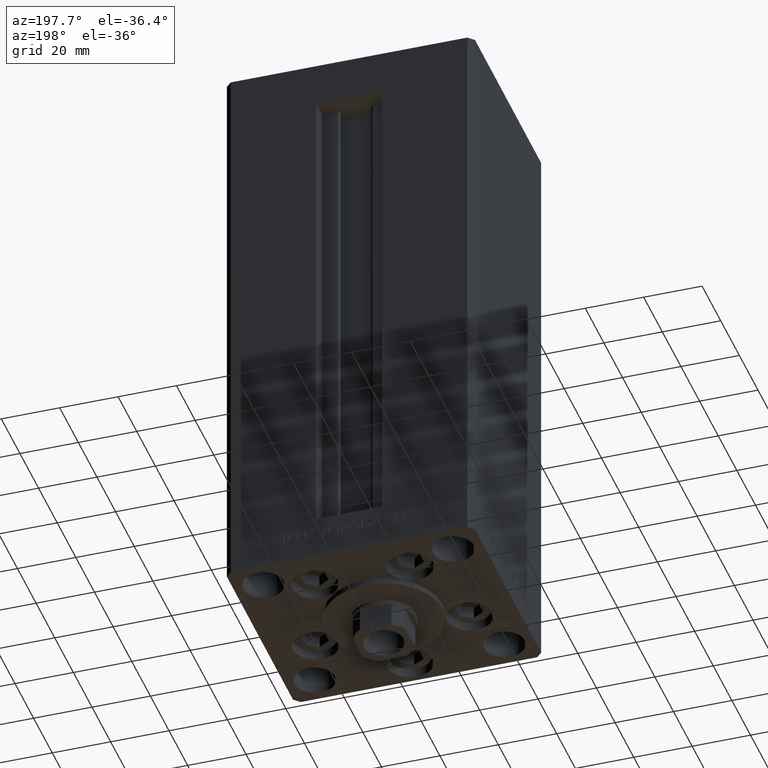
[diagram: clean part render]
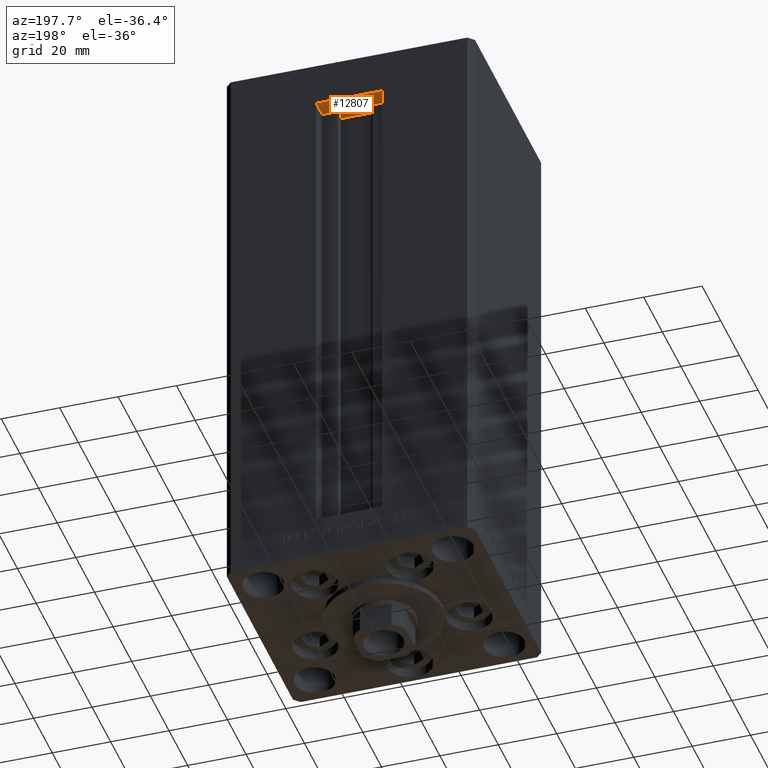
[diagram: same view with one face highlighted and labeled with its STEP entity id]
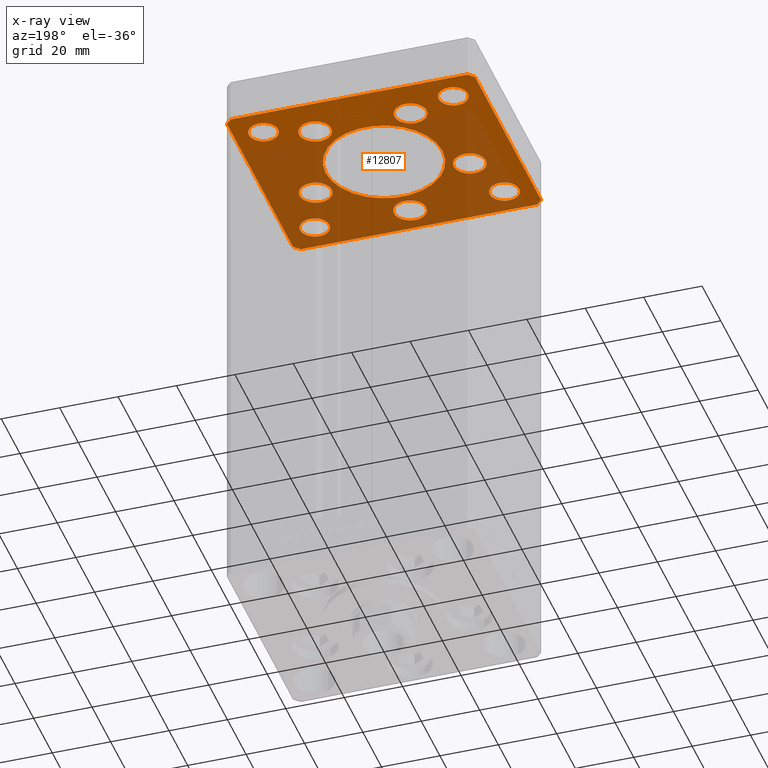
[diagram: x-ray of the same camera — body ghosted, the highlighted face saturated]
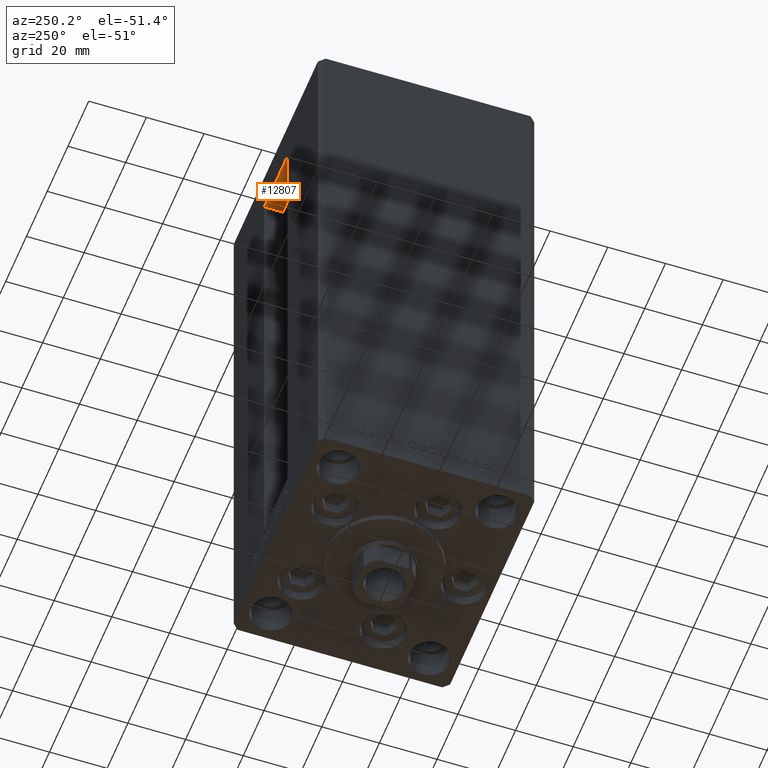
[diagram: same view with one face highlighted and labeled with its STEP entity id]
A machine part, auxiliary view. The second image highlights one B-rep face of the part: STEP entity #12807.
The next image is the same camera in x-ray: the body ghosted, the highlighted face saturated — about 64% of this face is hidden behind the body in this view.
A second angle (auxiliary view) of the same face is appended — the face is thin or edge-on in the first view.
In plain terms, the highlighted planar face has unit normal (0, 0, 1).
Its self-contained STEP definition (entity closure, byte-faithful):
#374 = ORIENTED_EDGE ( 'NONE', *, *, #46108, .T. ) ;
#472 = VERTEX_POINT ( 'NONE', #10645 ) ;
#768 = LINE ( 'NONE', #12902, #25895 ) ;
#923 = ORIENTED_EDGE ( 'NONE', *, *, #30045, .T. ) ;
#929 = CARTESIAN_POINT ( 'NONE',  ( 40.49999999999991473, 37.50000000000000711, -15.00000000000000000 ) ) ;
#1007 = VERTEX_POINT ( 'NONE', #45325 ) ;
#1208 = ORIENTED_EDGE ( 'NONE', *, *, #11529, .T. ) ;
#1237 = DIRECTION ( 'NONE',  ( 1.000000000000000000, 0.000000000000000000, 0.000000000000000000 ) ) ;
#1264 = EDGE_LOOP ( 'NONE', ( #39795, #923 ) ) ;
#1366 = EDGE_CURVE ( 'NONE', #2457, #16910, #15929, .T. ) ;
#1390 = DIRECTION ( 'NONE',  ( 1.000000000000000000, 0.000000000000000000, 0.000000000000000000 ) ) ;
#1812 = VERTEX_POINT ( 'NONE', #42500 ) ;
#2179 = AXIS2_PLACEMENT_3D ( 'NONE', #5905, #12590, #39066 ) ;
#2247 = CARTESIAN_POINT ( 'NONE',  ( 32.50000000000000000, 27.49999999999999645, -15.00000000000000000 ) ) ;
#2457 = VERTEX_POINT ( 'NONE', #39800 ) ;
#2488 = EDGE_CURVE ( 'NONE', #3518, #28970, #36571, .T. ) ;
#2561 = DIRECTION ( 'NONE',  ( 1.000000000000000000, 0.000000000000000000, 0.000000000000000000 ) ) ;
#2667 = DIRECTION ( 'NONE',  ( 0.7071067811865474617, 0.7071067811865474617, 0.000000000000000000 ) ) ;
#2744 = VERTEX_POINT ( 'NONE', #29098 ) ;
#2889 = AXIS2_PLACEMENT_3D ( 'NONE', #26035, #11169, #26262 ) ;
#3304 = LINE ( 'NONE', #29541, #30504 ) ;
#3518 = VERTEX_POINT ( 'NONE', #39870 ) ;
#3549 = EDGE_CURVE ( 'NONE', #1812, #36129, #25378, .T. ) ;
#3650 = CARTESIAN_POINT ( 'NONE',  ( -40.50000000000000711, 37.49999999999997868, -15.00000000000000000 ) ) ;
#3892 = ORIENTED_EDGE ( 'NONE', *, *, #13446, .F. ) ;
#4025 = AXIS2_PLACEMENT_3D ( 'NONE', #2247, #43826, #17356 ) ;
#4085 = DIRECTION ( 'NONE',  ( 0.7071067811865463515, -0.7071067811865487940, 0.000000000000000000 ) ) ;
#4173 = DIRECTION ( 'NONE',  ( 0.000000000000000000, -0.000000000000000000, -1.000000000000000000 ) ) ;
#4447 = FACE_OUTER_BOUND ( 'NONE', #11737, .T. ) ;
#4823 = LINE ( 'NONE', #31301, #41502 ) ;
#5193 = CARTESIAN_POINT ( 'NONE',  ( -32.50000000000000000, -27.49999999999999645, -15.00000000000000000 ) ) ;
#5330 = ORIENTED_EDGE ( 'NONE', *, *, #48752, .F. ) ;
#5555 = CARTESIAN_POINT ( 'NONE',  ( -32.50000000000000000, 27.50000000000000355, -15.00000000000000000 ) ) ;
#5905 = CARTESIAN_POINT ( 'NONE',  ( 3.429011037612589276E-15, -28.00000000000000000, -15.00000000000000000 ) ) ;
#6147 = CARTESIAN_POINT ( 'NONE',  ( 40.50000000000000000, -37.50000000000000711, -15.00000000000000000 ) ) ;
#6386 = DIRECTION ( 'NONE',  ( 1.000000000000000000, 0.000000000000000000, 0.000000000000000000 ) ) ;
#6528 = ORIENTED_EDGE ( 'NONE', *, *, #37465, .F. ) ;
#6620 = ORIENTED_EDGE ( 'NONE', *, *, #19940, .F. ) ;
#6718 = EDGE_LOOP ( 'NONE', ( #6620, #6528 ) ) ;
#7186 = DIRECTION ( 'NONE',  ( -1.000000000000000000, 0.000000000000000000, 0.000000000000000000 ) ) ;
#7817 = CARTESIAN_POINT ( 'NONE',  ( 42.49999999999992895, 35.50000000000000000, -15.00000000000000000 ) ) ;
#7899 = EDGE_CURVE ( 'NONE', #32725, #13802, #11292, .T. ) ;
#8099 = AXIS2_PLACEMENT_3D ( 'NONE', #36132, #35146, #1237 ) ;
#8138 = DIRECTION ( 'NONE',  ( -0.000000000000000000, 0.000000000000000000, 1.000000000000000000 ) ) ;
#8310 = AXIS2_PLACEMENT_3D ( 'NONE', #32182, #13133, #27735 ) ;
#8640 = DIRECTION ( 'NONE',  ( 0.000000000000000000, -0.000000000000000000, -1.000000000000000000 ) ) ;
#8994 = DIRECTION ( 'NONE',  ( 0.000000000000000000, 0.000000000000000000, 1.000000000000000000 ) ) ;
#9035 = AXIS2_PLACEMENT_3D ( 'NONE', #22423, #17520, #47700 ) ;
#10238 = CARTESIAN_POINT ( 'NONE',  ( -27.50000000000000000, 27.50000000000000355, -15.00000000000000000 ) ) ;
#10322 = ORIENTED_EDGE ( 'NONE', *, *, #35474, .F. ) ;
#10333 = ORIENTED_EDGE ( 'NONE', *, *, #32221, .F. ) ;
#10645 = CARTESIAN_POINT ( 'NONE',  ( -42.50000000000000000, -35.50000000000000711, -15.00000000000000000 ) ) ;
#11096 = VERTEX_POINT ( 'NONE', #14770 ) ;
#11169 = DIRECTION ( 'NONE',  ( 0.000000000000000000, -0.000000000000000000, -1.000000000000000000 ) ) ;
#11279 = EDGE_CURVE ( 'NONE', #16718, #26800, #11530, .T. ) ;
#11292 = CIRCLE ( 'NONE', #27087, 5.500000000000000000 ) ;
#11381 = FACE_BOUND ( 'NONE', #48390, .T. ) ;
#11529 = EDGE_CURVE ( 'NONE', #16784, #16659, #46979, .T. ) ;
#11530 = LINE ( 'NONE', #7817, #13003 ) ;
#11737 = EDGE_LOOP ( 'NONE', ( #47469, #10322, #14054, #15085, #28581, #3892, #44416, #34085 ) ) ;
#11896 = CARTESIAN_POINT ( 'NONE',  ( 21.82291334290542650, 22.75000000000000000, -15.00000000000000000 ) ) ;
#12103 = DIRECTION ( 'NONE',  ( -0.000000000000000000, -0.000000000000000000, -1.000000000000000000 ) ) ;
#12108 = DIRECTION ( 'NONE',  ( 1.000000000000000000, 0.000000000000000000, 0.000000000000000000 ) ) ;
#12363 = AXIS2_PLACEMENT_3D ( 'NONE', #19364, #23071, #29548 ) ;
#12590 = DIRECTION ( 'NONE',  ( 0.000000000000000000, -0.000000000000000000, -1.000000000000000000 ) ) ;
#12616 = VERTEX_POINT ( 'NONE', #35440 ) ;
#12805 = ORIENTED_EDGE ( 'NONE', *, *, #18080, .F. ) ;
#12807 = ADVANCED_FACE ( 'NONE', ( #30909, #33906, #15094, #26720, #15332, #30191, #45274, #11381, #4447, #46010, #41816 ), #26478, .F. ) ;
#12902 = CARTESIAN_POINT ( 'NONE',  ( -40.49999999999999289, -37.50000000000002132, -15.00000000000000000 ) ) ;
#13003 = VECTOR ( 'NONE', #23148, 1000.000000000000114 ) ;
#13032 = VERTEX_POINT ( 'NONE', #17554 ) ;
#13133 = DIRECTION ( 'NONE',  ( 0.000000000000000000, -0.000000000000000000, -1.000000000000000000 ) ) ;
#13183 = CIRCLE ( 'NONE', #12363, 5.500000000000000000 ) ;
#13404 = EDGE_CURVE ( 'NONE', #472, #42751, #41460, .T. ) ;
#13446 = EDGE_CURVE ( 'NONE', #28970, #16718, #4823, .T. ) ;
#13556 = ORIENTED_EDGE ( 'NONE', *, *, #37689, .F. ) ;
#13657 = CARTESIAN_POINT ( 'NONE',  ( 42.50000000000000711, -35.50000000000000000, -15.00000000000000000 ) ) ;
#13767 = ORIENTED_EDGE ( 'NONE', *, *, #34899, .F. ) ;
#13802 = VERTEX_POINT ( 'NONE', #34948 ) ;
#14054 = ORIENTED_EDGE ( 'NONE', *, *, #45545, .F. ) ;
#14770 = CARTESIAN_POINT ( 'NONE',  ( 20.89865316429777309, -9.333333333333330373, -15.00000000000000000 ) ) ;
#15085 = ORIENTED_EDGE ( 'NONE', *, *, #41429, .F. ) ;
#15094 = FACE_BOUND ( 'NONE', #47668, .T. ) ;
#15201 = CARTESIAN_POINT ( 'NONE',  ( 20.00000000000000000, 0.000000000000000000, -15.00000000000000000 ) ) ;
#15332 = FACE_BOUND ( 'NONE', #45406, .T. ) ;
#15929 = CIRCLE ( 'NONE', #18209, 4.999999999999997335 ) ;
#16144 = CIRCLE ( 'NONE', #9035, 5.500000000000000000 ) ;
#16181 = AXIS2_PLACEMENT_3D ( 'NONE', #41305, #4173, #25983 ) ;
#16310 = CARTESIAN_POINT ( 'NONE',  ( -10.82291334290543183, 22.74999999999999645, -15.00000000000000000 ) ) ;
#16659 = VERTEX_POINT ( 'NONE', #10238 ) ;
#16718 = VERTEX_POINT ( 'NONE', #37671 ) ;
#16784 = VERTEX_POINT ( 'NONE', #26528 ) ;
#16910 = VERTEX_POINT ( 'NONE', #23047 ) ;
#16942 = DIRECTION ( 'NONE',  ( 0.000000000000000000, 0.000000000000000000, 1.000000000000000000 ) ) ;
#17017 = CARTESIAN_POINT ( 'NONE',  ( -40.50000000000000711, 37.49999999999997868, -15.00000000000000000 ) ) ;
#17120 = ORIENTED_EDGE ( 'NONE', *, *, #21578, .F. ) ;
#17356 = DIRECTION ( 'NONE',  ( 1.000000000000000000, 0.000000000000000000, 0.000000000000000000 ) ) ;
#17520 = DIRECTION ( 'NONE',  ( 0.000000000000000000, -0.000000000000000000, -1.000000000000000000 ) ) ;
#17554 = CARTESIAN_POINT ( 'NONE',  ( -42.50000000000000711, 35.49999999999997158, -15.00000000000000000 ) ) ;
#17717 = CIRCLE ( 'NONE', #31116, 5.499999999999998224 ) ;
#17759 = EDGE_CURVE ( 'NONE', #26413, #40225, #38348, .T. ) ;
#17879 = CIRCLE ( 'NONE', #32109, 5.000000000000004441 ) ;
#18080 = EDGE_CURVE ( 'NONE', #18358, #28953, #17879, .T. ) ;
#18209 = AXIS2_PLACEMENT_3D ( 'NONE', #19286, #12103, #7186 ) ;
#18358 = VERTEX_POINT ( 'NONE', #46844 ) ;
#18571 = VERTEX_POINT ( 'NONE', #11896 ) ;
#19107 = DIRECTION ( 'NONE',  ( -1.000000000000000000, -3.426614273534436165E-16, 0.000000000000000000 ) ) ;
#19237 = AXIS2_PLACEMENT_3D ( 'NONE', #39939, #40422, #29285 ) ;
#19256 = VERTEX_POINT ( 'NONE', #46858 ) ;
#19286 = CARTESIAN_POINT ( 'NONE',  ( 32.50000000000000000, -27.49999999999999645, -15.00000000000000000 ) ) ;
#19334 = DIRECTION ( 'NONE',  ( 1.000000000000000000, 1.713307136767217096E-16, 0.000000000000000000 ) ) ;
#19345 = AXIS2_PLACEMENT_3D ( 'NONE', #42050, #8138, #12108 ) ;
#19364 = CARTESIAN_POINT ( 'NONE',  ( -16.32291334290543006, 22.74999999999999645, -15.00000000000000000 ) ) ;
#19452 = DIRECTION ( 'NONE',  ( 1.000000000000000000, 0.000000000000000000, 0.000000000000000000 ) ) ;
#19940 = EDGE_CURVE ( 'NONE', #2744, #11096, #44753, .T. ) ;
#20032 = CARTESIAN_POINT ( 'NONE',  ( 16.32291334290542295, 22.75000000000000000, -15.00000000000000000 ) ) ;
#20327 = EDGE_LOOP ( 'NONE', ( #43040, #42219 ) ) ;
#20521 = CARTESIAN_POINT ( 'NONE',  ( -42.50000000000000711, 35.49999999999997158, -15.00000000000000000 ) ) ;
#21033 = CIRCLE ( 'NONE', #47086, 5.500000000000001776 ) ;
#21377 = DIRECTION ( 'NONE',  ( 0.000000000000000000, -0.000000000000000000, -1.000000000000000000 ) ) ;
#21497 = LINE ( 'NONE', #3650, #33801 ) ;
#21578 = EDGE_CURVE ( 'NONE', #42259, #12616, #32217, .T. ) ;
#21594 = CIRCLE ( 'NONE', #8099, 4.999999999999997335 ) ;
#22423 = CARTESIAN_POINT ( 'NONE',  ( 3.429011037612589276E-15, -28.00000000000000000, -15.00000000000000000 ) ) ;
#22889 = CARTESIAN_POINT ( 'NONE',  ( -42.50000000000000000, -35.50000000000000711, -15.00000000000000000 ) ) ;
#23047 = CARTESIAN_POINT ( 'NONE',  ( 27.50000000000000355, -27.49999999999999645, -15.00000000000000000 ) ) ;
#23071 = DIRECTION ( 'NONE',  ( 0.000000000000000000, -0.000000000000000000, -1.000000000000000000 ) ) ;
#23148 = DIRECTION ( 'NONE',  ( -0.7071067811865474617, 0.7071067811865474617, 0.000000000000000000 ) ) ;
#23743 = DIRECTION ( 'NONE',  ( 1.000000000000000000, 0.000000000000000000, 0.000000000000000000 ) ) ;
#23906 = ORIENTED_EDGE ( 'NONE', *, *, #17759, .F. ) ;
#24494 = CARTESIAN_POINT ( 'NONE',  ( -16.32291334290543006, 22.74999999999999645, -15.00000000000000000 ) ) ;
#25378 = CIRCLE ( 'NONE', #4025, 4.999999999999997335 ) ;
#25651 = AXIS2_PLACEMENT_3D ( 'NONE', #43892, #8994, #2561 ) ;
#25708 = CARTESIAN_POINT ( 'NONE',  ( -5.499999999999996447, -28.00000000000000000, -15.00000000000000000 ) ) ;
#25895 = VECTOR ( 'NONE', #19334, 1000.000000000000000 ) ;
#25983 = DIRECTION ( 'NONE',  ( 1.000000000000000000, 0.000000000000000000, 0.000000000000000000 ) ) ;
#26035 = CARTESIAN_POINT ( 'NONE',  ( 26.39865316429776954, -9.333333333333330373, -15.00000000000000000 ) ) ;
#26207 = DIRECTION ( 'NONE',  ( -1.000000000000000000, 0.000000000000000000, 0.000000000000000000 ) ) ;
#26262 = DIRECTION ( 'NONE',  ( 1.000000000000000000, 0.000000000000000000, 0.000000000000000000 ) ) ;
#26413 = VERTEX_POINT ( 'NONE', #42382 ) ;
#26478 = PLANE ( 'NONE',  #19345 ) ;
#26513 = CARTESIAN_POINT ( 'NONE',  ( -26.39865316429776954, -9.333333333333337478, -15.00000000000000000 ) ) ;
#26528 = CARTESIAN_POINT ( 'NONE',  ( -37.50000000000000711, 27.50000000000000355, -15.00000000000000000 ) ) ;
#26720 = FACE_BOUND ( 'NONE', #6718, .T. ) ;
#26800 = VERTEX_POINT ( 'NONE', #929 ) ;
#27087 = AXIS2_PLACEMENT_3D ( 'NONE', #24494, #27218, #42308 ) ;
#27218 = DIRECTION ( 'NONE',  ( 0.000000000000000000, -0.000000000000000000, -1.000000000000000000 ) ) ;
#27735 = DIRECTION ( 'NONE',  ( 1.000000000000000000, 0.000000000000000000, 0.000000000000000000 ) ) ;
#28188 = DIRECTION ( 'NONE',  ( 9.773090005503140331E-17, -1.000000000000000000, 0.000000000000000000 ) ) ;
#28335 = DIRECTION ( 'NONE',  ( -1.172770800660376741E-15, 1.000000000000000000, 0.000000000000000000 ) ) ;
#28524 = VECTOR ( 'NONE', #2667, 1000.000000000000114 ) ;
#28581 = ORIENTED_EDGE ( 'NONE', *, *, #11279, .F. ) ;
#28669 = CARTESIAN_POINT ( 'NONE',  ( 0.000000000000000000, 0.000000000000000000, -15.00000000000000000 ) ) ;
#28774 = VECTOR ( 'NONE', #28188, 1000.000000000000000 ) ;
#28953 = VERTEX_POINT ( 'NONE', #37813 ) ;
#28970 = VERTEX_POINT ( 'NONE', #13657 ) ;
#29098 = CARTESIAN_POINT ( 'NONE',  ( 31.89865316429776954, -9.333333333333330373, -15.00000000000000000 ) ) ;
#29120 = VERTEX_POINT ( 'NONE', #17017 ) ;
#29285 = DIRECTION ( 'NONE',  ( -1.000000000000000000, 0.000000000000000000, 0.000000000000000000 ) ) ;
#29541 = CARTESIAN_POINT ( 'NONE',  ( 40.49999999999991473, 37.50000000000000711, -15.00000000000000000 ) ) ;
#29548 = DIRECTION ( 'NONE',  ( 1.000000000000000000, 0.000000000000000000, 0.000000000000000000 ) ) ;
#29580 = AXIS2_PLACEMENT_3D ( 'NONE', #43893, #21377, #1390 ) ;
#30045 = EDGE_CURVE ( 'NONE', #36129, #1812, #21594, .T. ) ;
#30191 = FACE_BOUND ( 'NONE', #20327, .T. ) ;
#30504 = VECTOR ( 'NONE', #19107, 1000.000000000000000 ) ;
#30909 = FACE_BOUND ( 'NONE', #33508, .T. ) ;
#31116 = AXIS2_PLACEMENT_3D ( 'NONE', #26513, #48308, #33701 ) ;
#31301 = CARTESIAN_POINT ( 'NONE',  ( 42.50000000000000711, -35.50000000000000000, -15.00000000000000000 ) ) ;
#31548 = EDGE_LOOP ( 'NONE', ( #12805, #5330 ) ) ;
#32109 = AXIS2_PLACEMENT_3D ( 'NONE', #45019, #33875, #26207 ) ;
#32182 = CARTESIAN_POINT ( 'NONE',  ( 0.000000000000000000, 0.000000000000000000, -15.00000000000000000 ) ) ;
#32217 = CIRCLE ( 'NONE', #2179, 5.500000000000000000 ) ;
#32221 = EDGE_CURVE ( 'NONE', #1007, #45427, #17717, .T. ) ;
#32725 = VERTEX_POINT ( 'NONE', #16310 ) ;
#32996 = EDGE_CURVE ( 'NONE', #45427, #1007, #45379, .T. ) ;
#33265 = EDGE_LOOP ( 'NONE', ( #36754, #13767 ) ) ;
#33508 = EDGE_LOOP ( 'NONE', ( #13556, #23906 ) ) ;
#33626 = VECTOR ( 'NONE', #4085, 1000.000000000000000 ) ;
#33701 = DIRECTION ( 'NONE',  ( 1.000000000000000000, 0.000000000000000000, 0.000000000000000000 ) ) ;
#33760 = AXIS2_PLACEMENT_3D ( 'NONE', #5193, #43047, #39594 ) ;
#33801 = VECTOR ( 'NONE', #44260, 1000.000000000000000 ) ;
#33875 = DIRECTION ( 'NONE',  ( -0.000000000000000000, -0.000000000000000000, -1.000000000000000000 ) ) ;
#33906 = FACE_BOUND ( 'NONE', #46036, .T. ) ;
#34085 = ORIENTED_EDGE ( 'NONE', *, *, #45252, .F. ) ;
#34899 = EDGE_CURVE ( 'NONE', #16910, #2457, #46090, .T. ) ;
#34948 = CARTESIAN_POINT ( 'NONE',  ( -21.82291334290543361, 22.74999999999999645, -15.00000000000000000 ) ) ;
#35146 = DIRECTION ( 'NONE',  ( 0.000000000000000000, 0.000000000000000000, 1.000000000000000000 ) ) ;
#35440 = CARTESIAN_POINT ( 'NONE',  ( 5.500000000000003553, -28.00000000000000000, -15.00000000000000000 ) ) ;
#35474 = EDGE_CURVE ( 'NONE', #13032, #472, #39329, .T. ) ;
#36129 = VERTEX_POINT ( 'NONE', #42802 ) ;
#36132 = CARTESIAN_POINT ( 'NONE',  ( 32.50000000000000000, 27.49999999999999645, -15.00000000000000000 ) ) ;
#36416 = EDGE_CURVE ( 'NONE', #12616, #42259, #16144, .T. ) ;
#36489 = EDGE_CURVE ( 'NONE', #18571, #19256, #38239, .T. ) ;
#36571 = LINE ( 'NONE', #6147, #28524 ) ;
#36748 = AXIS2_PLACEMENT_3D ( 'NONE', #28669, #43757, #6386 ) ;
#36754 = ORIENTED_EDGE ( 'NONE', *, *, #1366, .F. ) ;
#37043 = ORIENTED_EDGE ( 'NONE', *, *, #40760, .F. ) ;
#37061 = ORIENTED_EDGE ( 'NONE', *, *, #36489, .F. ) ;
#37465 = EDGE_CURVE ( 'NONE', #11096, #2744, #39899, .T. ) ;
#37671 = CARTESIAN_POINT ( 'NONE',  ( 42.49999999999992895, 35.50000000000000000, -15.00000000000000000 ) ) ;
#37689 = EDGE_CURVE ( 'NONE', #40225, #26413, #43853, .T. ) ;
#37813 = CARTESIAN_POINT ( 'NONE',  ( -37.50000000000000711, -27.49999999999999645, -15.00000000000000000 ) ) ;
#38239 = CIRCLE ( 'NONE', #41433, 5.500000000000001776 ) ;
#38248 = CARTESIAN_POINT ( 'NONE',  ( 16.32291334290542295, 22.75000000000000000, -15.00000000000000000 ) ) ;
#38348 = CIRCLE ( 'NONE', #8310, 20.00000000000000000 ) ;
#39066 = DIRECTION ( 'NONE',  ( 1.000000000000000000, 0.000000000000000000, 0.000000000000000000 ) ) ;
#39329 = LINE ( 'NONE', #20521, #28774 ) ;
#39354 = AXIS2_PLACEMENT_3D ( 'NONE', #5555, #16942, #39956 ) ;
#39594 = DIRECTION ( 'NONE',  ( -1.000000000000000000, 0.000000000000000000, 0.000000000000000000 ) ) ;
#39795 = ORIENTED_EDGE ( 'NONE', *, *, #3549, .T. ) ;
#39800 = CARTESIAN_POINT ( 'NONE',  ( 37.50000000000000000, -27.49999999999999645, -15.00000000000000000 ) ) ;
#39870 = CARTESIAN_POINT ( 'NONE',  ( 40.50000000000000000, -37.50000000000000711, -15.00000000000000000 ) ) ;
#39899 = CIRCLE ( 'NONE', #16181, 5.499999999999998224 ) ;
#39939 = CARTESIAN_POINT ( 'NONE',  ( 32.50000000000000000, -27.49999999999999645, -15.00000000000000000 ) ) ;
#39956 = DIRECTION ( 'NONE',  ( 1.000000000000000000, 0.000000000000000000, 0.000000000000000000 ) ) ;
#40225 = VERTEX_POINT ( 'NONE', #15201 ) ;
#40422 = DIRECTION ( 'NONE',  ( -0.000000000000000000, -0.000000000000000000, -1.000000000000000000 ) ) ;
#40760 = EDGE_CURVE ( 'NONE', #19256, #18571, #21033, .T. ) ;
#41305 = CARTESIAN_POINT ( 'NONE',  ( 26.39865316429776954, -9.333333333333330373, -15.00000000000000000 ) ) ;
#41429 = EDGE_CURVE ( 'NONE', #26800, #29120, #3304, .T. ) ;
#41433 = AXIS2_PLACEMENT_3D ( 'NONE', #38248, #41963, #19452 ) ;
#41460 = LINE ( 'NONE', #22889, #33626 ) ;
#41502 = VECTOR ( 'NONE', #28335, 1000.000000000000000 ) ;
#41810 = ORIENTED_EDGE ( 'NONE', *, *, #36416, .F. ) ;
#41816 = FACE_BOUND ( 'NONE', #31548, .T. ) ;
#41963 = DIRECTION ( 'NONE',  ( 0.000000000000000000, -0.000000000000000000, -1.000000000000000000 ) ) ;
#42050 = CARTESIAN_POINT ( 'NONE',  ( 0.000000000000000000, 0.000000000000000000, -15.00000000000000000 ) ) ;
#42219 = ORIENTED_EDGE ( 'NONE', *, *, #42568, .F. ) ;
#42259 = VERTEX_POINT ( 'NONE', #25708 ) ;
#42308 = DIRECTION ( 'NONE',  ( 1.000000000000000000, 0.000000000000000000, 0.000000000000000000 ) ) ;
#42382 = CARTESIAN_POINT ( 'NONE',  ( -20.00000000000000000, 2.449293598294706513E-15, -15.00000000000000000 ) ) ;
#42500 = CARTESIAN_POINT ( 'NONE',  ( 37.50000000000000000, 27.49999999999999645, -15.00000000000000000 ) ) ;
#42568 = EDGE_CURVE ( 'NONE', #13802, #32725, #13183, .T. ) ;
#42751 = VERTEX_POINT ( 'NONE', #44333 ) ;
#42794 = CARTESIAN_POINT ( 'NONE',  ( -31.89865316429776954, -9.333333333333337478, -15.00000000000000000 ) ) ;
#42802 = CARTESIAN_POINT ( 'NONE',  ( 27.50000000000000355, 27.49999999999999645, -15.00000000000000000 ) ) ;
#43040 = ORIENTED_EDGE ( 'NONE', *, *, #7899, .F. ) ;
#43047 = DIRECTION ( 'NONE',  ( -0.000000000000000000, -0.000000000000000000, -1.000000000000000000 ) ) ;
#43757 = DIRECTION ( 'NONE',  ( 0.000000000000000000, -0.000000000000000000, -1.000000000000000000 ) ) ;
#43826 = DIRECTION ( 'NONE',  ( 0.000000000000000000, 0.000000000000000000, 1.000000000000000000 ) ) ;
#43853 = CIRCLE ( 'NONE', #36748, 20.00000000000000000 ) ;
#43892 = CARTESIAN_POINT ( 'NONE',  ( -32.50000000000000000, 27.50000000000000355, -15.00000000000000000 ) ) ;
#43893 = CARTESIAN_POINT ( 'NONE',  ( -26.39865316429776954, -9.333333333333337478, -15.00000000000000000 ) ) ;
#44096 = CIRCLE ( 'NONE', #39354, 5.000000000000000888 ) ;
#44260 = DIRECTION ( 'NONE',  ( -0.7071067811865463515, -0.7071067811865487940, 0.000000000000000000 ) ) ;
#44333 = CARTESIAN_POINT ( 'NONE',  ( -40.49999999999999289, -37.50000000000002132, -15.00000000000000000 ) ) ;
#44416 = ORIENTED_EDGE ( 'NONE', *, *, #2488, .F. ) ;
#44753 = CIRCLE ( 'NONE', #2889, 5.499999999999998224 ) ;
#44758 = ORIENTED_EDGE ( 'NONE', *, *, #32996, .F. ) ;
#45019 = CARTESIAN_POINT ( 'NONE',  ( -32.50000000000000000, -27.49999999999999645, -15.00000000000000000 ) ) ;
#45252 = EDGE_CURVE ( 'NONE', #42751, #3518, #768, .T. ) ;
#45274 = FACE_BOUND ( 'NONE', #1264, .T. ) ;
#45325 = CARTESIAN_POINT ( 'NONE',  ( -20.89865316429777309, -9.333333333333337478, -15.00000000000000000 ) ) ;
#45379 = CIRCLE ( 'NONE', #29580, 5.499999999999998224 ) ;
#45406 = EDGE_LOOP ( 'NONE', ( #37061, #37043 ) ) ;
#45427 = VERTEX_POINT ( 'NONE', #42794 ) ;
#45545 = EDGE_CURVE ( 'NONE', #29120, #13032, #21497, .T. ) ;
#46010 = FACE_BOUND ( 'NONE', #33265, .T. ) ;
#46036 = EDGE_LOOP ( 'NONE', ( #10333, #44758 ) ) ;
#46090 = CIRCLE ( 'NONE', #19237, 4.999999999999997335 ) ;
#46108 = EDGE_CURVE ( 'NONE', #16659, #16784, #44096, .T. ) ;
#46844 = CARTESIAN_POINT ( 'NONE',  ( -27.50000000000000000, -27.49999999999999645, -15.00000000000000000 ) ) ;
#46858 = CARTESIAN_POINT ( 'NONE',  ( 10.82291334290542473, 22.75000000000000000, -15.00000000000000000 ) ) ;
#46979 = CIRCLE ( 'NONE', #25651, 5.000000000000000888 ) ;
#47086 = AXIS2_PLACEMENT_3D ( 'NONE', #20032, #8640, #23743 ) ;
#47469 = ORIENTED_EDGE ( 'NONE', *, *, #13404, .F. ) ;
#47668 = EDGE_LOOP ( 'NONE', ( #41810, #17120 ) ) ;
#47700 = DIRECTION ( 'NONE',  ( 1.000000000000000000, 0.000000000000000000, 0.000000000000000000 ) ) ;
#48308 = DIRECTION ( 'NONE',  ( 0.000000000000000000, -0.000000000000000000, -1.000000000000000000 ) ) ;
#48390 = EDGE_LOOP ( 'NONE', ( #374, #1208 ) ) ;
#48752 = EDGE_CURVE ( 'NONE', #28953, #18358, #48767, .T. ) ;
#48767 = CIRCLE ( 'NONE', #33760, 5.000000000000004441 ) ;